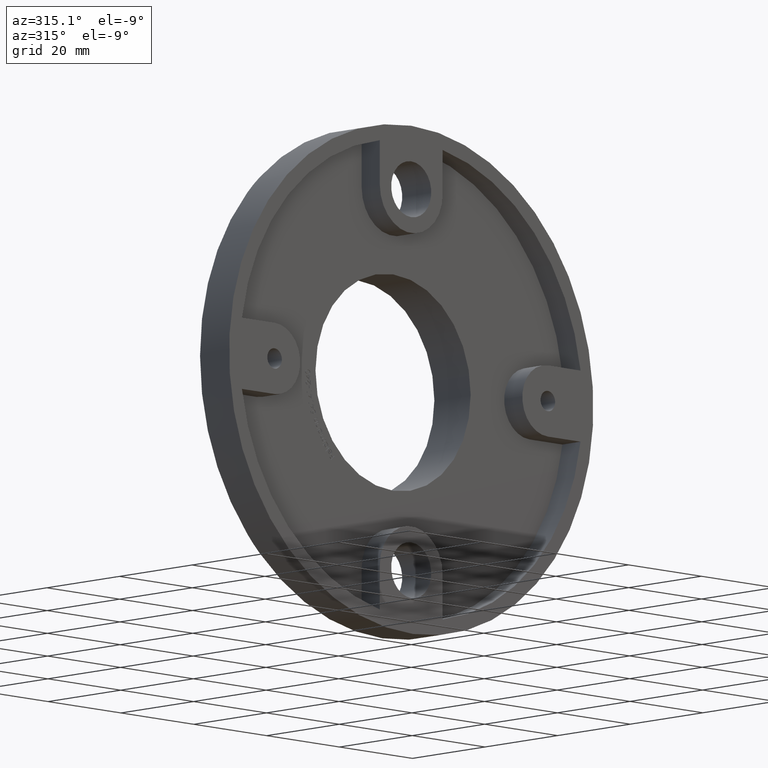
[diagram: clean part render]
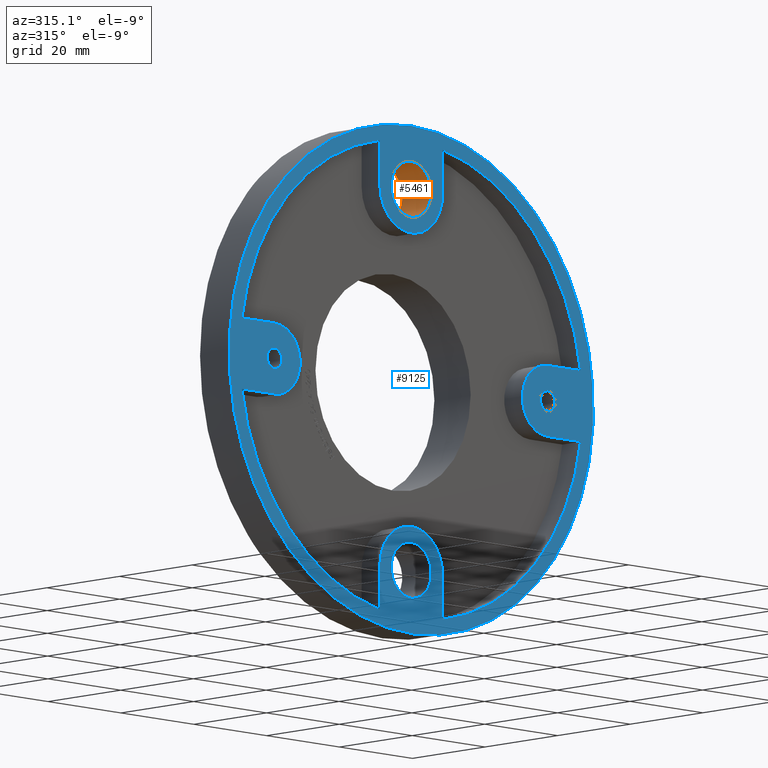
[diagram: same view with the hole feature highlighted: cylindrical wall and planar end face, labeled with their STEP entity ids]
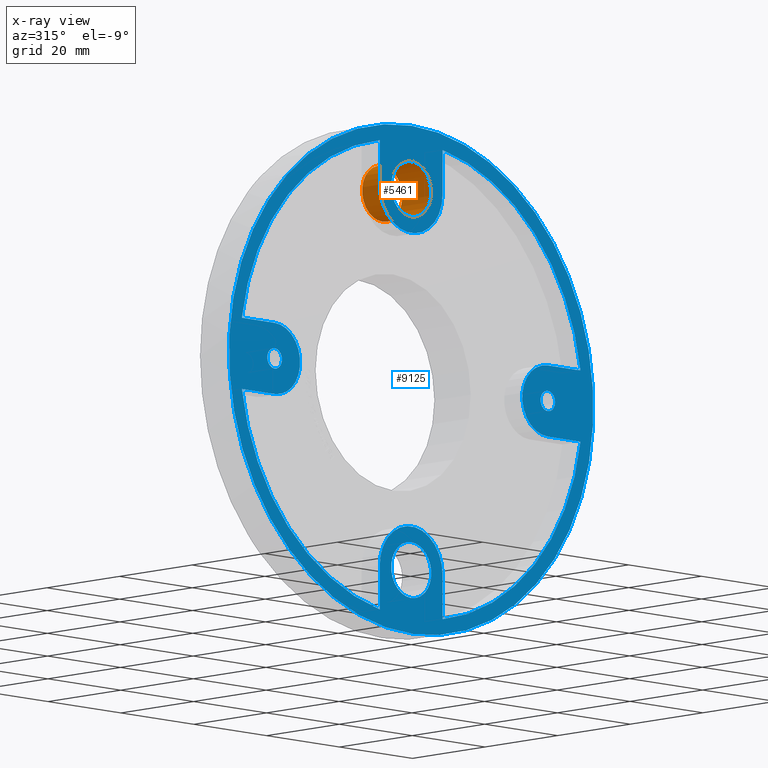
[diagram: x-ray of the same camera — body ghosted, the hole faces saturated]
A machine part, auxiliary view. The highlighted faces form one hole feature of diameter 11 mm: the cylindrical wall (entity #5461, orange) and its adjacent planar end face (entity #9125, blue) — they share a circular edge in the B-rep.
The next image is the same camera in x-ray (body ghosted, the hole faces saturated) — the bore reads through the body.
Wall:
#617 = CARTESIAN_POINT ( 'NONE',  ( 0.000000000000000000, 0.000000000000000000, 43.00000000000000000 ) ) ;
#2676 = CIRCLE ( 'NONE', #4581, 5.499999999999998224 ) ;
#3098 = EDGE_CURVE ( 'NONE', #4872, #4872, #2676, .T. ) ;
#3675 = CARTESIAN_POINT ( 'NONE',  ( 0.000000000000000000, 8.000000000000000000, 37.50000000000000000 ) ) ;
#4581 = AXIS2_PLACEMENT_3D ( 'NONE', #10676, #11658, #5236 ) ;
#4872 = VERTEX_POINT ( 'NONE', #617 ) ;
#5236 = DIRECTION ( 'NONE',  ( 0.000000000000000000, 0.000000000000000000, 1.000000000000000000 ) ) ;
#5357 = DIRECTION ( 'NONE',  ( 0.000000000000000000, 0.000000000000000000, 1.000000000000000000 ) ) ;
#5461 = ADVANCED_FACE ( 'NONE', ( #8542, #5543 ), #11541, .F. ) ;
#5543 = FACE_OUTER_BOUND ( 'NONE', #10731, .T. ) ;
#5925 = DIRECTION ( 'NONE',  ( 0.000000000000000000, 0.000000000000000000, -1.000000000000000000 ) ) ;
#6033 = CARTESIAN_POINT ( 'NONE',  ( 0.000000000000000000, 8.000000000000000000, 43.00000000000000000 ) ) ;
#6459 = DIRECTION ( 'NONE',  ( 0.000000000000000000, 1.000000000000000000, 0.000000000000000000 ) ) ;
#6789 = CARTESIAN_POINT ( 'NONE',  ( 0.000000000000000000, 8.000000000000000000, 37.50000000000000000 ) ) ;
#6831 = VERTEX_POINT ( 'NONE', #6033 ) ;
#7178 = ORIENTED_EDGE ( 'NONE', *, *, #3098, .F. ) ;
#7749 = EDGE_CURVE ( 'NONE', #6831, #6831, #10298, .T. ) ;
#8379 = ORIENTED_EDGE ( 'NONE', *, *, #7749, .T. ) ;
#8542 = FACE_OUTER_BOUND ( 'NONE', #11808, .T. ) ;
#8719 = AXIS2_PLACEMENT_3D ( 'NONE', #6789, #10367, #5925 ) ;
#9881 = AXIS2_PLACEMENT_3D ( 'NONE', #3675, #6459, #5357 ) ;
#10298 = CIRCLE ( 'NONE', #9881, 5.499999999999998224 ) ;
#10367 = DIRECTION ( 'NONE',  ( -0.000000000000000000, -1.000000000000000000, -0.000000000000000000 ) ) ;
#10676 = CARTESIAN_POINT ( 'NONE',  ( 0.000000000000000000, 0.000000000000000000, 37.50000000000000000 ) ) ;
#10731 = EDGE_LOOP ( 'NONE', ( #7178 ) ) ;
#11541 = CYLINDRICAL_SURFACE ( 'NONE', #8719, 5.499999999999998224 ) ;
#11658 = DIRECTION ( 'NONE',  ( 0.000000000000000000, 1.000000000000000000, 0.000000000000000000 ) ) ;
#11808 = EDGE_LOOP ( 'NONE', ( #8379 ) ) ;
End face:
#12 = LINE ( 'NONE', #6479, #11736 ) ;
#159 = VECTOR ( 'NONE', #6148, 1000.000000000000000 ) ;
#366 = EDGE_CURVE ( 'NONE', #8617, #1295, #11496, .T. ) ;
#391 = DIRECTION ( 'NONE',  ( -1.000000000000000000, 0.000000000000000000, -9.663336115550834567E-17 ) ) ;
#422 = CARTESIAN_POINT ( 'NONE',  ( -8.624999999999994671, 0.000000000000000000, -46.20183302640707268 ) ) ;
#546 = DIRECTION ( 'NONE',  ( 0.000000000000000000, 0.000000000000000000, 1.000000000000000000 ) ) ;
#594 = EDGE_CURVE ( 'NONE', #4423, #9746, #10067, .T. ) ;
#617 = CARTESIAN_POINT ( 'NONE',  ( 0.000000000000000000, 0.000000000000000000, 43.00000000000000000 ) ) ;
#864 = FACE_BOUND ( 'NONE', #2878, .T. ) ;
#1053 = AXIS2_PLACEMENT_3D ( 'NONE', #4239, #6013, #11429 ) ;
#1070 = VERTEX_POINT ( 'NONE', #5381 ) ;
#1125 = CARTESIAN_POINT ( 'NONE',  ( 8.624999999999996447, 0.000000000000000000, 1.719406696829903752E-15 ) ) ;
#1150 = LINE ( 'NONE', #11604, #159 ) ;
#1271 = AXIS2_PLACEMENT_3D ( 'NONE', #9327, #11034, #5574 ) ;
#1282 = DIRECTION ( 'NONE',  ( 0.000000000000000000, 1.000000000000000000, -0.000000000000000000 ) ) ;
#1295 = VERTEX_POINT ( 'NONE', #3243 ) ;
#1308 = CARTESIAN_POINT ( 'NONE',  ( 8.624999999999969802, 0.000000000000000000, -5.158220090489694491E-15 ) ) ;
#1344 = DIRECTION ( 'NONE',  ( 5.980545032451841451E-16, 0.000000000000000000, 1.000000000000000000 ) ) ;
#1543 = VERTEX_POINT ( 'NONE', #8788 ) ;
#1577 = LINE ( 'NONE', #8045, #2125 ) ;
#1670 = EDGE_CURVE ( 'NONE', #7908, #7908, #3989, .T. ) ;
#1682 = ORIENTED_EDGE ( 'NONE', *, *, #9237, .F. ) ;
#1906 = ORIENTED_EDGE ( 'NONE', *, *, #9879, .T. ) ;
#1924 = VERTEX_POINT ( 'NONE', #422 ) ;
#2056 = CARTESIAN_POINT ( 'NONE',  ( -9.184850993605148733E-15, 0.000000000000000000, 37.50000000000000000 ) ) ;
#2090 = VECTOR ( 'NONE', #11060, 1000.000000000000000 ) ;
#2125 = VECTOR ( 'NONE', #8955, 1000.000000000000000 ) ;
#2127 = CARTESIAN_POINT ( 'NONE',  ( 37.50000000000000000, 0.000000000000000000, 9.184850993605148733E-15 ) ) ;
#2144 = ORIENTED_EDGE ( 'NONE', *, *, #8969, .T. ) ;
#2184 = DIRECTION ( 'NONE',  ( 0.000000000000000000, -1.000000000000000000, 0.000000000000000000 ) ) ;
#2204 = ORIENTED_EDGE ( 'NONE', *, *, #2591, .T. ) ;
#2206 = CARTESIAN_POINT ( 'NONE',  ( -8.625000000000007105, 0.000000000000000000, 46.20183302640707268 ) ) ;
#2255 = CIRCLE ( 'NONE', #3718, 8.625000000000000000 ) ;
#2301 = DIRECTION ( 'NONE',  ( 0.000000000000000000, 0.000000000000000000, -1.000000000000000000 ) ) ;
#2389 = VERTEX_POINT ( 'NONE', #3000 ) ;
#2415 = CARTESIAN_POINT ( 'NONE',  ( 37.50000000000000000, 0.000000000000000000, 7.000000000000003553 ) ) ;
#2525 = CARTESIAN_POINT ( 'NONE',  ( 0.000000000000000000, 0.000000000000000000, 50.00000000000000000 ) ) ;
#2561 = CIRCLE ( 'NONE', #6903, 2.000000000000003109 ) ;
#2576 = FACE_BOUND ( 'NONE', #8374, .T. ) ;
#2591 = EDGE_CURVE ( 'NONE', #8534, #10085, #2255, .T. ) ;
#2634 = ORIENTED_EDGE ( 'NONE', *, *, #7911, .F. ) ;
#2656 = AXIS2_PLACEMENT_3D ( 'NONE', #2056, #11209, #11376 ) ;
#2676 = CIRCLE ( 'NONE', #4581, 5.499999999999998224 ) ;
#2722 = VERTEX_POINT ( 'NONE', #10803 ) ;
#2738 = DIRECTION ( 'NONE',  ( 0.000000000000000000, 1.000000000000000000, 0.000000000000000000 ) ) ;
#2802 = AXIS2_PLACEMENT_3D ( 'NONE', #7936, #9764, #2301 ) ;
#2814 = EDGE_CURVE ( 'NONE', #7312, #7312, #5002, .T. ) ;
#2867 = LINE ( 'NONE', #1125, #10592 ) ;
#2878 = EDGE_LOOP ( 'NONE', ( #10381 ) ) ;
#2882 = EDGE_CURVE ( 'NONE', #5407, #7343, #4425, .T. ) ;
#2902 = CARTESIAN_POINT ( 'NONE',  ( -8.624999999999987566, 0.000000000000000000, 1.719406696829901582E-15 ) ) ;
#2960 = EDGE_CURVE ( 'NONE', #6541, #1924, #4846, .T. ) ;
#2990 = CARTESIAN_POINT ( 'NONE',  ( 37.50000000000000000, 0.000000000000000000, 0.000000000000000000 ) ) ;
#3000 = CARTESIAN_POINT ( 'NONE',  ( 8.624999999999996447, 0.000000000000000000, 46.20183302640707268 ) ) ;
#3085 = LINE ( 'NONE', #2902, #2090 ) ;
#3096 = DIRECTION ( 'NONE',  ( 0.000000000000000000, 0.000000000000000000, -1.000000000000000000 ) ) ;
#3098 = EDGE_CURVE ( 'NONE', #4872, #4872, #2676, .T. ) ;
#3118 = ORIENTED_EDGE ( 'NONE', *, *, #2882, .T. ) ;
#3243 = CARTESIAN_POINT ( 'NONE',  ( -46.47580015448900070, 0.000000000000000000, 6.999999999999991118 ) ) ;
#3276 = DIRECTION ( 'NONE',  ( 0.000000000000000000, 0.000000000000000000, -1.000000000000000000 ) ) ;
#3327 = CARTESIAN_POINT ( 'NONE',  ( -37.50000000000000000, 0.000000000000000000, 0.000000000000000000 ) ) ;
#3515 = DIRECTION ( 'NONE',  ( 0.000000000000000000, 1.000000000000000000, 0.000000000000000000 ) ) ;
#3641 = CARTESIAN_POINT ( 'NONE',  ( 37.50000000000000000, 0.000000000000000000, -6.999999999999994671 ) ) ;
#3698 = VERTEX_POINT ( 'NONE', #4569 ) ;
#3704 = CIRCLE ( 'NONE', #7984, 2.000000000000003109 ) ;
#3718 = AXIS2_PLACEMENT_3D ( 'NONE', #4178, #10603, #3276 ) ;
#3888 = EDGE_CURVE ( 'NONE', #10085, #1924, #3085, .T. ) ;
#3895 = EDGE_CURVE ( 'NONE', #2722, #3698, #9549, .T. ) ;
#3965 = EDGE_CURVE ( 'NONE', #5407, #6541, #9407, .T. ) ;
#3989 = CIRCLE ( 'NONE', #6272, 50.00000000000000000 ) ;
#4178 = CARTESIAN_POINT ( 'NONE',  ( 0.000000000000000000, 0.000000000000000000, -37.50000000000000000 ) ) ;
#4239 = CARTESIAN_POINT ( 'NONE',  ( 0.000000000000000000, 0.000000000000000000, 0.000000000000000000 ) ) ;
#4259 = VECTOR ( 'NONE', #391, 1000.000000000000000 ) ;
#4423 = VERTEX_POINT ( 'NONE', #3641 ) ;
#4425 = CIRCLE ( 'NONE', #6046, 6.999999999999998224 ) ;
#4552 = CARTESIAN_POINT ( 'NONE',  ( -8.624999999999992895, 0.000000000000000000, -37.50000000000000000 ) ) ;
#4569 = CARTESIAN_POINT ( 'NONE',  ( -8.625000000000001776, 0.000000000000000000, 37.50000000000000000 ) ) ;
#4581 = AXIS2_PLACEMENT_3D ( 'NONE', #10676, #11658, #5236 ) ;
#4730 = AXIS2_PLACEMENT_3D ( 'NONE', #5368, #8044, #8954 ) ;
#4792 = VECTOR ( 'NONE', #4961, 1000.000000000000000 ) ;
#4846 = CIRCLE ( 'NONE', #1053, 47.00000000000000000 ) ;
#4872 = VERTEX_POINT ( 'NONE', #617 ) ;
#4916 = DIRECTION ( 'NONE',  ( -0.000000000000000000, 1.000000000000000000, -0.000000000000000000 ) ) ;
#4923 = CARTESIAN_POINT ( 'NONE',  ( 6.764335280885583581E-16, -0.000000000000000000, -6.999999999999999112 ) ) ;
#4961 = DIRECTION ( 'NONE',  ( 1.000000000000000000, 0.000000000000000000, 2.899000834665250247E-16 ) ) ;
#5002 = CIRCLE ( 'NONE', #1271, 5.499999999999998224 ) ;
#5044 = VERTEX_POINT ( 'NONE', #2415 ) ;
#5070 = EDGE_CURVE ( 'NONE', #11108, #9746, #10685, .T. ) ;
#5236 = DIRECTION ( 'NONE',  ( 0.000000000000000000, 0.000000000000000000, 1.000000000000000000 ) ) ;
#5321 = AXIS2_PLACEMENT_3D ( 'NONE', #2127, #4916, #6747 ) ;
#5332 = FACE_BOUND ( 'NONE', #11722, .T. ) ;
#5354 = ORIENTED_EDGE ( 'NONE', *, *, #594, .T. ) ;
#5360 = AXIS2_PLACEMENT_3D ( 'NONE', #11300, #8558, #5849 ) ;
#5368 = CARTESIAN_POINT ( 'NONE',  ( 0.000000000000000000, 0.000000000000000000, 0.000000000000000000 ) ) ;
#5378 = DIRECTION ( 'NONE',  ( 0.000000000000000000, 0.000000000000000000, 1.000000000000000000 ) ) ;
#5381 = CARTESIAN_POINT ( 'NONE',  ( 46.47580015448900070, 0.000000000000000000, 7.000000000000004441 ) ) ;
#5388 = EDGE_CURVE ( 'NONE', #2722, #2389, #10534, .T. ) ;
#5407 = VERTEX_POINT ( 'NONE', #11286 ) ;
#5485 = ORIENTED_EDGE ( 'NONE', *, *, #8737, .F. ) ;
#5574 = DIRECTION ( 'NONE',  ( 0.000000000000000000, 0.000000000000000000, -1.000000000000000000 ) ) ;
#5714 = CARTESIAN_POINT ( 'NONE',  ( -37.50000000000000000, 0.000000000000000000, 6.999999999999993783 ) ) ;
#5849 = DIRECTION ( 'NONE',  ( 0.000000000000000000, 0.000000000000000000, -1.000000000000000000 ) ) ;
#5960 = ORIENTED_EDGE ( 'NONE', *, *, #2814, .T. ) ;
#6013 = DIRECTION ( 'NONE',  ( 0.000000000000000000, -1.000000000000000000, 0.000000000000000000 ) ) ;
#6046 = AXIS2_PLACEMENT_3D ( 'NONE', #7694, #2184, #3096 ) ;
#6148 = DIRECTION ( 'NONE',  ( -5.980545032451841451E-16, 0.000000000000000000, 1.000000000000000000 ) ) ;
#6186 = PLANE ( 'NONE',  #7358 ) ;
#6272 = AXIS2_PLACEMENT_3D ( 'NONE', #7173, #2738, #5378 ) ;
#6461 = FACE_OUTER_BOUND ( 'NONE', #9753, .T. ) ;
#6479 = CARTESIAN_POINT ( 'NONE',  ( -2.029300584265676948E-15, 0.000000000000000000, 7.000000000000005329 ) ) ;
#6495 = ORIENTED_EDGE ( 'NONE', *, *, #2960, .F. ) ;
#6541 = VERTEX_POINT ( 'NONE', #8871 ) ;
#6745 = ORIENTED_EDGE ( 'NONE', *, *, #3965, .F. ) ;
#6747 = DIRECTION ( 'NONE',  ( 0.000000000000000000, 0.000000000000000000, -1.000000000000000000 ) ) ;
#6751 = ORIENTED_EDGE ( 'NONE', *, *, #3895, .F. ) ;
#6903 = AXIS2_PLACEMENT_3D ( 'NONE', #2990, #1282, #7704 ) ;
#6949 = CARTESIAN_POINT ( 'NONE',  ( 0.000000000000000000, 0.000000000000000000, -43.00000000000000000 ) ) ;
#7173 = CARTESIAN_POINT ( 'NONE',  ( 0.000000000000000000, 0.000000000000000000, 0.000000000000000000 ) ) ;
#7312 = VERTEX_POINT ( 'NONE', #6949 ) ;
#7343 = VERTEX_POINT ( 'NONE', #5714 ) ;
#7358 = AXIS2_PLACEMENT_3D ( 'NONE', #8852, #3515, #8028 ) ;
#7390 = ORIENTED_EDGE ( 'NONE', *, *, #10621, .F. ) ;
#7397 = CARTESIAN_POINT ( 'NONE',  ( 46.47580015448900070, 0.000000000000000000, -6.999999999999992006 ) ) ;
#7436 = DIRECTION ( 'NONE',  ( -1.000000000000000000, 0.000000000000000000, -2.899000834665250247E-16 ) ) ;
#7694 = CARTESIAN_POINT ( 'NONE',  ( -37.50000000000000000, 0.000000000000000000, 0.000000000000000000 ) ) ;
#7704 = DIRECTION ( 'NONE',  ( 0.000000000000000000, 0.000000000000000000, -1.000000000000000000 ) ) ;
#7878 = CARTESIAN_POINT ( 'NONE',  ( 37.50000000000000000, 0.000000000000000000, -2.000000000000003109 ) ) ;
#7908 = VERTEX_POINT ( 'NONE', #2525 ) ;
#7911 = EDGE_CURVE ( 'NONE', #8534, #11108, #2867, .T. ) ;
#7936 = CARTESIAN_POINT ( 'NONE',  ( 0.000000000000000000, 0.000000000000000000, 0.000000000000000000 ) ) ;
#7984 = AXIS2_PLACEMENT_3D ( 'NONE', #3327, #9632, #546 ) ;
#8028 = DIRECTION ( 'NONE',  ( 0.000000000000000000, -0.000000000000000000, 1.000000000000000000 ) ) ;
#8041 = ORIENTED_EDGE ( 'NONE', *, *, #366, .F. ) ;
#8044 = DIRECTION ( 'NONE',  ( 0.000000000000000000, -1.000000000000000000, 0.000000000000000000 ) ) ;
#8045 = CARTESIAN_POINT ( 'NONE',  ( -6.764335280885584567E-16, -0.000000000000000000, 7.000000000000000000 ) ) ;
#8181 = VERTEX_POINT ( 'NONE', #7878 ) ;
#8374 = EDGE_LOOP ( 'NONE', ( #1906 ) ) ;
#8534 = VERTEX_POINT ( 'NONE', #8543 ) ;
#8543 = CARTESIAN_POINT ( 'NONE',  ( 8.625000000000003553, 0.000000000000000000, -37.50000000000000000 ) ) ;
#8558 = DIRECTION ( 'NONE',  ( 0.000000000000000000, -1.000000000000000000, 0.000000000000000000 ) ) ;
#8617 = VERTEX_POINT ( 'NONE', #2206 ) ;
#8707 = CIRCLE ( 'NONE', #5321, 6.999999999999999112 ) ;
#8737 = EDGE_CURVE ( 'NONE', #5044, #1070, #1577, .T. ) ;
#8788 = CARTESIAN_POINT ( 'NONE',  ( -37.50000000000000000, 0.000000000000000000, 2.000000000000003109 ) ) ;
#8852 = CARTESIAN_POINT ( 'NONE',  ( 0.000000000000000000, 0.000000000000000000, 0.000000000000000000 ) ) ;
#8871 = CARTESIAN_POINT ( 'NONE',  ( -46.47580015448900070, 0.000000000000000000, -7.000000000000003553 ) ) ;
#8954 = DIRECTION ( 'NONE',  ( 0.000000000000000000, 0.000000000000000000, -1.000000000000000000 ) ) ;
#8955 = DIRECTION ( 'NONE',  ( 1.000000000000000000, 0.000000000000000000, 9.663336115550834567E-17 ) ) ;
#8969 = EDGE_CURVE ( 'NONE', #8181, #8181, #2561, .T. ) ;
#9125 = ADVANCED_FACE ( 'NONE', ( #11144, #6461, #2576, #864, #5332, #11749 ), #6186, .F. ) ;
#9160 = ORIENTED_EDGE ( 'NONE', *, *, #1670, .F. ) ;
#9237 = EDGE_CURVE ( 'NONE', #3698, #8617, #1150, .T. ) ;
#9327 = CARTESIAN_POINT ( 'NONE',  ( 0.000000000000000000, 0.000000000000000000, -37.50000000000000000 ) ) ;
#9407 = LINE ( 'NONE', #4923, #4259 ) ;
#9549 = CIRCLE ( 'NONE', #2656, 8.624999999999996447 ) ;
#9632 = DIRECTION ( 'NONE',  ( 0.000000000000000000, 1.000000000000000000, 0.000000000000000000 ) ) ;
#9714 = EDGE_CURVE ( 'NONE', #7343, #1295, #12, .T. ) ;
#9746 = VERTEX_POINT ( 'NONE', #7397 ) ;
#9753 = EDGE_LOOP ( 'NONE', ( #9160 ) ) ;
#9764 = DIRECTION ( 'NONE',  ( 0.000000000000000000, -1.000000000000000000, 0.000000000000000000 ) ) ;
#9879 = EDGE_CURVE ( 'NONE', #1543, #1543, #3704, .T. ) ;
#9920 = ORIENTED_EDGE ( 'NONE', *, *, #11542, .F. ) ;
#10067 = LINE ( 'NONE', #10497, #4792 ) ;
#10085 = VERTEX_POINT ( 'NONE', #4552 ) ;
#10381 = ORIENTED_EDGE ( 'NONE', *, *, #3098, .T. ) ;
#10497 = CARTESIAN_POINT ( 'NONE',  ( 2.029300584265676948E-15, 0.000000000000000000, -7.000000000000006217 ) ) ;
#10534 = LINE ( 'NONE', #1308, #10958 ) ;
#10592 = VECTOR ( 'NONE', #11104, 1000.000000000000000 ) ;
#10603 = DIRECTION ( 'NONE',  ( 0.000000000000000000, -1.000000000000000000, 0.000000000000000000 ) ) ;
#10621 = EDGE_CURVE ( 'NONE', #1070, #2389, #10862, .T. ) ;
#10676 = CARTESIAN_POINT ( 'NONE',  ( 0.000000000000000000, 0.000000000000000000, 37.50000000000000000 ) ) ;
#10685 = CIRCLE ( 'NONE', #2802, 47.00000000000000000 ) ;
#10707 = CARTESIAN_POINT ( 'NONE',  ( 8.625000000000005329, 0.000000000000000000, -46.20183302640707268 ) ) ;
#10800 = EDGE_LOOP ( 'NONE', ( #6495, #6745, #3118, #11756, #8041, #1682, #6751, #11695, #7390, #5485, #9920, #5354, #10922, #2634, #2204, #10892 ) ) ;
#10803 = CARTESIAN_POINT ( 'NONE',  ( 8.624999999999992895, 0.000000000000000000, 37.50000000000000000 ) ) ;
#10862 = CIRCLE ( 'NONE', #5360, 47.00000000000000000 ) ;
#10892 = ORIENTED_EDGE ( 'NONE', *, *, #3888, .T. ) ;
#10922 = ORIENTED_EDGE ( 'NONE', *, *, #5070, .F. ) ;
#10958 = VECTOR ( 'NONE', #1344, 1000.000000000000000 ) ;
#11034 = DIRECTION ( 'NONE',  ( 0.000000000000000000, 1.000000000000000000, -0.000000000000000000 ) ) ;
#11060 = DIRECTION ( 'NONE',  ( -1.993515010817280319E-16, 0.000000000000000000, -1.000000000000000000 ) ) ;
#11104 = DIRECTION ( 'NONE',  ( 1.993515010817280319E-16, 0.000000000000000000, -1.000000000000000000 ) ) ;
#11108 = VERTEX_POINT ( 'NONE', #10707 ) ;
#11144 = FACE_BOUND ( 'NONE', #10800, .T. ) ;
#11209 = DIRECTION ( 'NONE',  ( -0.000000000000000000, 1.000000000000000000, -0.000000000000000000 ) ) ;
#11286 = CARTESIAN_POINT ( 'NONE',  ( -37.50000000000000000, 0.000000000000000000, -7.000000000000002665 ) ) ;
#11300 = CARTESIAN_POINT ( 'NONE',  ( 0.000000000000000000, 0.000000000000000000, 0.000000000000000000 ) ) ;
#11376 = DIRECTION ( 'NONE',  ( 0.000000000000000000, 0.000000000000000000, -1.000000000000000000 ) ) ;
#11429 = DIRECTION ( 'NONE',  ( 0.000000000000000000, 0.000000000000000000, -1.000000000000000000 ) ) ;
#11496 = CIRCLE ( 'NONE', #4730, 47.00000000000000000 ) ;
#11542 = EDGE_CURVE ( 'NONE', #4423, #5044, #8707, .T. ) ;
#11604 = CARTESIAN_POINT ( 'NONE',  ( -8.624999999999980460, -0.000000000000000000, -5.158220090489701591E-15 ) ) ;
#11658 = DIRECTION ( 'NONE',  ( 0.000000000000000000, 1.000000000000000000, 0.000000000000000000 ) ) ;
#11695 = ORIENTED_EDGE ( 'NONE', *, *, #5388, .T. ) ;
#11722 = EDGE_LOOP ( 'NONE', ( #2144 ) ) ;
#11736 = VECTOR ( 'NONE', #7436, 1000.000000000000000 ) ;
#11749 = FACE_BOUND ( 'NONE', #11825, .T. ) ;
#11756 = ORIENTED_EDGE ( 'NONE', *, *, #9714, .T. ) ;
#11825 = EDGE_LOOP ( 'NONE', ( #5960 ) ) ;